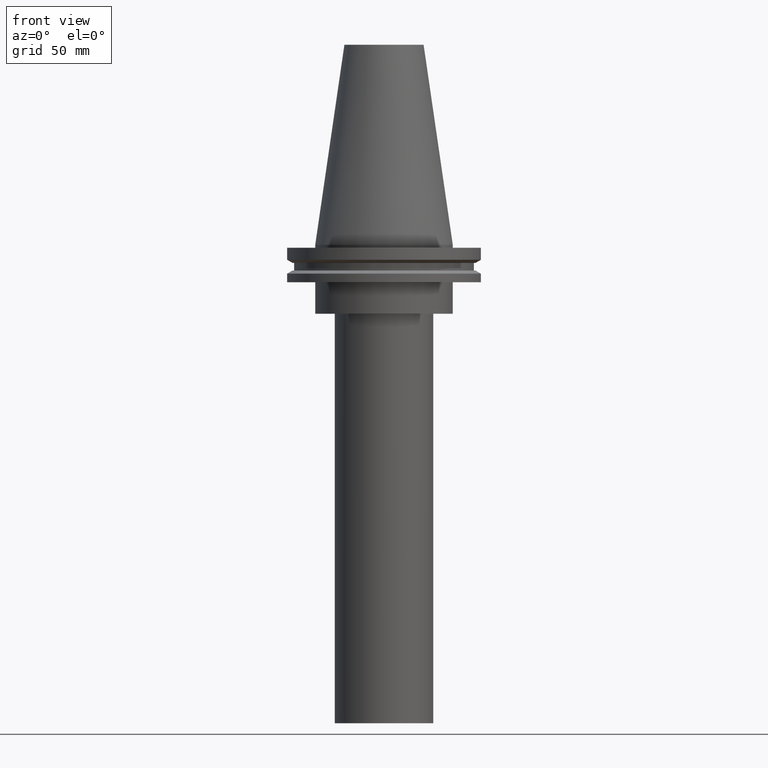
[diagram: clean part render]
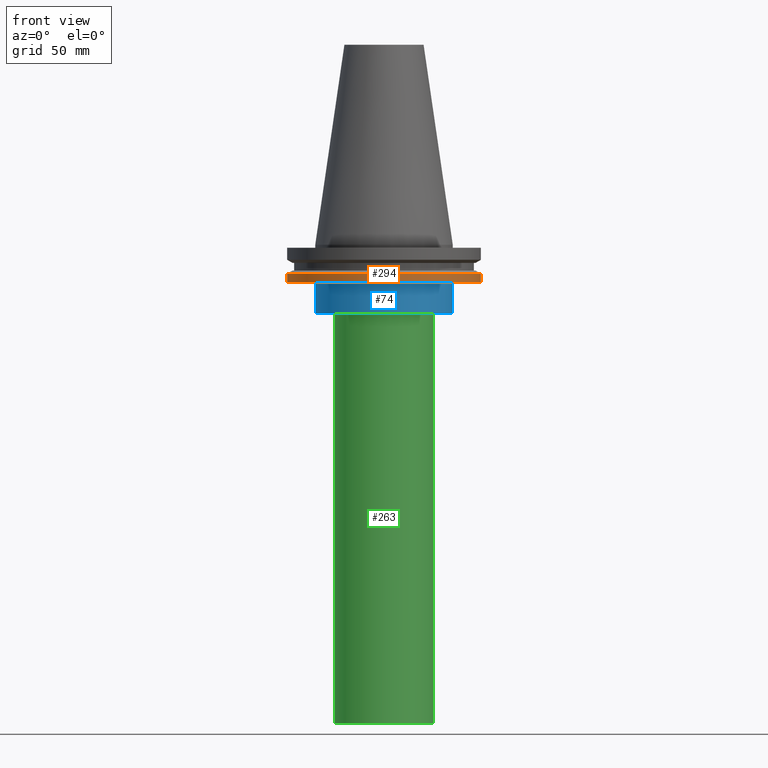
[diagram: same view with three faces highlighted in distinct colors, each labeled with its STEP entity id]
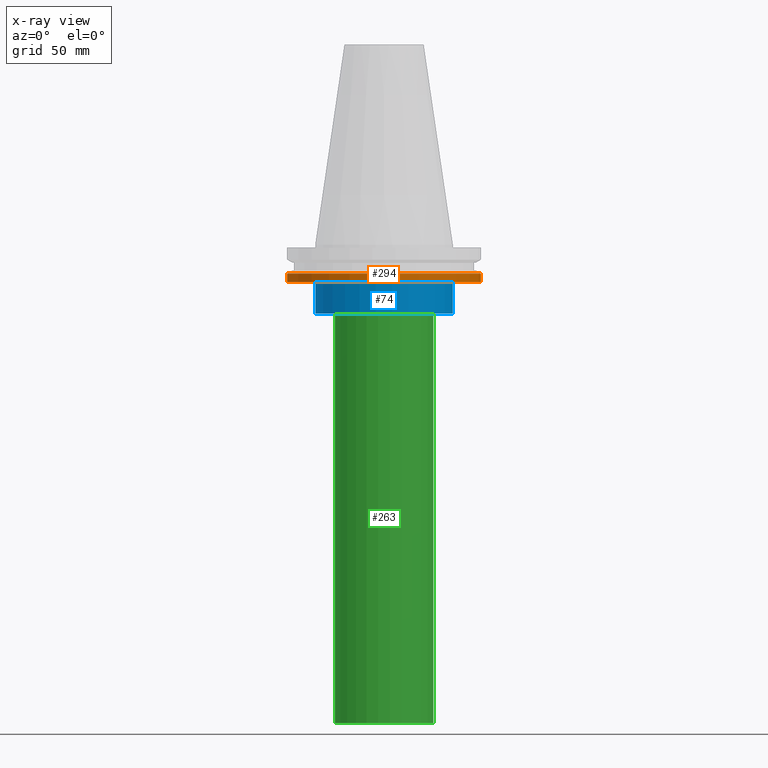
[diagram: x-ray of the same camera — body ghosted, the three highlighted faces saturated]
A machine part, front view with three faces highlighted in distinct colors.
The next image is the same camera in x-ray (body ghosted, the three faces saturated) — at least one of them is partly hidden behind the body in this view.
Their STEP definitions:

[orange] entity #294 — the highlighted cylindrical surface (bore or boss wall) has radius 49.215 mm, axis along (-0, -0, 1).
#17 = EDGE_LOOP ( 'NONE', ( #382 ) ) ;
#35 = DIRECTION ( 'NONE',  ( 1.000000000000000000, 0.000000000000000000, 0.000000000000000000 ) ) ;
#63 = CARTESIAN_POINT ( 'NONE',  ( 0.000000000000000000, 0.000000000000000000, 101.5999999999999943 ) ) ;
#80 = CARTESIAN_POINT ( 'NONE',  ( 49.21499999999998920, 0.000000000000000000, -14.65761014474876944 ) ) ;
#101 = DIRECTION ( 'NONE',  ( -0.000000000000000000, -0.000000000000000000, 1.000000000000000000 ) ) ;
#111 = DIRECTION ( 'NONE',  ( 1.000000000000000000, 0.000000000000000000, 0.000000000000000000 ) ) ;
#116 = CARTESIAN_POINT ( 'NONE',  ( 49.21499999999998920, 0.000000000000000000, -19.04999999999999716 ) ) ;
#131 = DIRECTION ( 'NONE',  ( 1.000000000000000000, 0.000000000000000000, 0.000000000000000000 ) ) ;
#135 = CIRCLE ( 'NONE', #377, 49.21499999999998920 ) ;
#137 = CARTESIAN_POINT ( 'NONE',  ( 0.000000000000000000, 0.000000000000000000, -14.65761014474876944 ) ) ;
#142 = ORIENTED_EDGE ( 'NONE', *, *, #303, .T. ) ;
#146 = AXIS2_PLACEMENT_3D ( 'NONE', #63, #317, #131 ) ;
#190 = FACE_OUTER_BOUND ( 'NONE', #17, .T. ) ;
#205 = EDGE_LOOP ( 'NONE', ( #142 ) ) ;
#224 = CYLINDRICAL_SURFACE ( 'NONE', #146, 49.21499999999998920 ) ;
#250 = AXIS2_PLACEMENT_3D ( 'NONE', #137, #258, #111 ) ;
#258 = DIRECTION ( 'NONE',  ( -0.000000000000000000, -0.000000000000000000, 1.000000000000000000 ) ) ;
#272 = VERTEX_POINT ( 'NONE', #116 ) ;
#277 = VERTEX_POINT ( 'NONE', #80 ) ;
#294 = ADVANCED_FACE ( 'NONE', ( #190, #347 ), #224, .T. ) ;
#303 = EDGE_CURVE ( 'NONE', #272, #272, #135, .T. ) ;
#317 = DIRECTION ( 'NONE',  ( -0.000000000000000000, -0.000000000000000000, 1.000000000000000000 ) ) ;
#345 = CIRCLE ( 'NONE', #250, 49.21499999999998920 ) ;
#347 = FACE_OUTER_BOUND ( 'NONE', #205, .T. ) ;
#356 = EDGE_CURVE ( 'NONE', #277, #277, #345, .T. ) ;
#377 = AXIS2_PLACEMENT_3D ( 'NONE', #384, #101, #35 ) ;
#382 = ORIENTED_EDGE ( 'NONE', *, *, #356, .F. ) ;
#384 = CARTESIAN_POINT ( 'NONE',  ( 0.000000000000000000, 0.000000000000000000, -19.04999999999999716 ) ) ;

[blue] entity #74 — the highlighted cylindrical surface (bore or boss wall) has radius 34.925 mm, axis along (-0, -0, 1).
#4 = DIRECTION ( 'NONE',  ( 1.000000000000000000, 0.000000000000000000, 0.000000000000000000 ) ) ;
#6 = CIRCLE ( 'NONE', #282, 34.92499999999999716 ) ;
#10 = EDGE_CURVE ( 'NONE', #172, #172, #311, .T. ) ;
#15 = CARTESIAN_POINT ( 'NONE',  ( 0.000000000000000000, 0.000000000000000000, -35.00000000000000000 ) ) ;
#30 = AXIS2_PLACEMENT_3D ( 'NONE', #170, #81, #300 ) ;
#54 = VERTEX_POINT ( 'NONE', #59 ) ;
#59 = CARTESIAN_POINT ( 'NONE',  ( 34.92499999999999716, 0.000000000000000000, -35.00000000000000000 ) ) ;
#74 = ADVANCED_FACE ( 'NONE', ( #123, #88 ), #84, .T. ) ;
#81 = DIRECTION ( 'NONE',  ( -0.000000000000000000, -0.000000000000000000, 1.000000000000000000 ) ) ;
#84 = CYLINDRICAL_SURFACE ( 'NONE', #197, 34.92499999999999716 ) ;
#88 = FACE_OUTER_BOUND ( 'NONE', #202, .T. ) ;
#112 = EDGE_LOOP ( 'NONE', ( #330 ) ) ;
#121 = DIRECTION ( 'NONE',  ( -0.000000000000000000, -0.000000000000000000, 1.000000000000000000 ) ) ;
#123 = FACE_OUTER_BOUND ( 'NONE', #112, .T. ) ;
#128 = DIRECTION ( 'NONE',  ( -0.000000000000000000, -0.000000000000000000, 1.000000000000000000 ) ) ;
#145 = ORIENTED_EDGE ( 'NONE', *, *, #315, .T. ) ;
#170 = CARTESIAN_POINT ( 'NONE',  ( 0.000000000000000000, 0.000000000000000000, -19.04999999999999716 ) ) ;
#172 = VERTEX_POINT ( 'NONE', #299 ) ;
#197 = AXIS2_PLACEMENT_3D ( 'NONE', #305, #121, #4 ) ;
#202 = EDGE_LOOP ( 'NONE', ( #145 ) ) ;
#253 = DIRECTION ( 'NONE',  ( 1.000000000000000000, 0.000000000000000000, 0.000000000000000000 ) ) ;
#282 = AXIS2_PLACEMENT_3D ( 'NONE', #15, #128, #253 ) ;
#299 = CARTESIAN_POINT ( 'NONE',  ( 34.92499999999999716, 0.000000000000000000, -19.04999999999999716 ) ) ;
#300 = DIRECTION ( 'NONE',  ( 1.000000000000000000, 0.000000000000000000, 0.000000000000000000 ) ) ;
#305 = CARTESIAN_POINT ( 'NONE',  ( 0.000000000000000000, 0.000000000000000000, 101.5999999999999943 ) ) ;
#311 = CIRCLE ( 'NONE', #30, 34.92499999999999716 ) ;
#315 = EDGE_CURVE ( 'NONE', #54, #54, #6, .T. ) ;
#330 = ORIENTED_EDGE ( 'NONE', *, *, #10, .F. ) ;

[green] entity #263 — the highlighted cylindrical surface (bore or boss wall) has radius 25 mm, axis along (-0, -0, 1).
#49 = EDGE_LOOP ( 'NONE', ( #394 ) ) ;
#52 = CIRCLE ( 'NONE', #92, 25.00000000000000000 ) ;
#58 = DIRECTION ( 'NONE',  ( 1.000000000000000000, 0.000000000000000000, 0.000000000000000000 ) ) ;
#70 = VERTEX_POINT ( 'NONE', #264 ) ;
#71 = AXIS2_PLACEMENT_3D ( 'NONE', #86, #183, #309 ) ;
#86 = CARTESIAN_POINT ( 'NONE',  ( 0.000000000000000000, 0.000000000000000000, -243.0000000000000000 ) ) ;
#92 = AXIS2_PLACEMENT_3D ( 'NONE', #151, #185, #58 ) ;
#113 = EDGE_LOOP ( 'NONE', ( #233 ) ) ;
#151 = CARTESIAN_POINT ( 'NONE',  ( 0.000000000000000000, 0.000000000000000000, -35.00000000000000000 ) ) ;
#154 = CIRCLE ( 'NONE', #71, 25.00000000000000000 ) ;
#166 = AXIS2_PLACEMENT_3D ( 'NONE', #291, #188, #385 ) ;
#183 = DIRECTION ( 'NONE',  ( -0.000000000000000000, -0.000000000000000000, 1.000000000000000000 ) ) ;
#185 = DIRECTION ( 'NONE',  ( -0.000000000000000000, -0.000000000000000000, 1.000000000000000000 ) ) ;
#188 = DIRECTION ( 'NONE',  ( -0.000000000000000000, -0.000000000000000000, 1.000000000000000000 ) ) ;
#196 = EDGE_CURVE ( 'NONE', #388, #388, #52, .T. ) ;
#207 = EDGE_CURVE ( 'NONE', #70, #70, #154, .T. ) ;
#233 = ORIENTED_EDGE ( 'NONE', *, *, #207, .T. ) ;
#263 = ADVANCED_FACE ( 'NONE', ( #381, #378 ), #288, .T. ) ;
#264 = CARTESIAN_POINT ( 'NONE',  ( 25.00000000000000000, 0.000000000000000000, -243.0000000000000000 ) ) ;
#288 = CYLINDRICAL_SURFACE ( 'NONE', #166, 25.00000000000000000 ) ;
#291 = CARTESIAN_POINT ( 'NONE',  ( 0.000000000000000000, 0.000000000000000000, 0.000000000000000000 ) ) ;
#309 = DIRECTION ( 'NONE',  ( 1.000000000000000000, 0.000000000000000000, 0.000000000000000000 ) ) ;
#359 = CARTESIAN_POINT ( 'NONE',  ( 25.00000000000000000, 0.000000000000000000, -35.00000000000000000 ) ) ;
#378 = FACE_OUTER_BOUND ( 'NONE', #113, .T. ) ;
#381 = FACE_OUTER_BOUND ( 'NONE', #49, .T. ) ;
#385 = DIRECTION ( 'NONE',  ( 1.000000000000000000, 0.000000000000000000, 0.000000000000000000 ) ) ;
#388 = VERTEX_POINT ( 'NONE', #359 ) ;
#394 = ORIENTED_EDGE ( 'NONE', *, *, #196, .F. ) ;